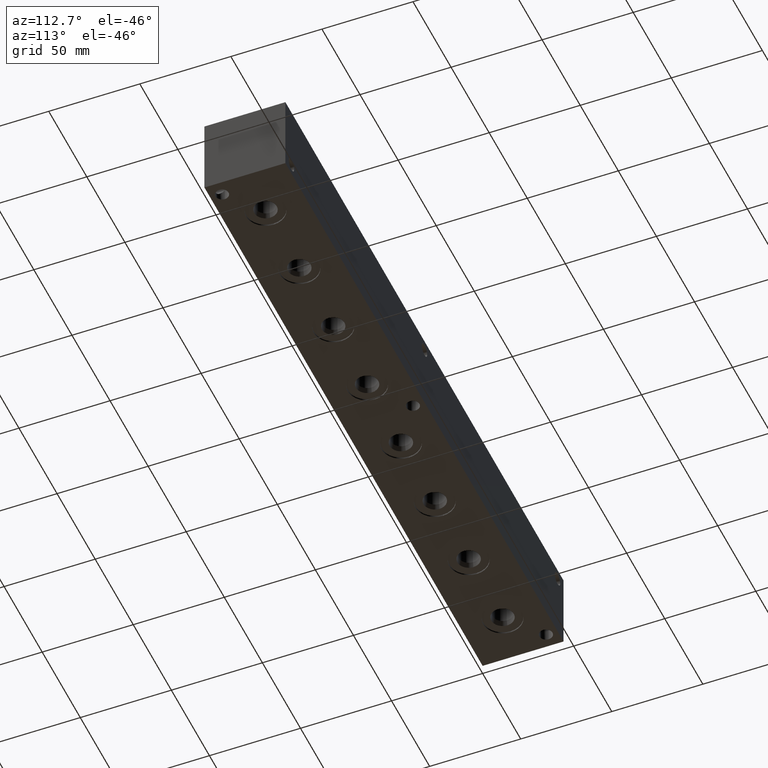
[diagram: clean part render]
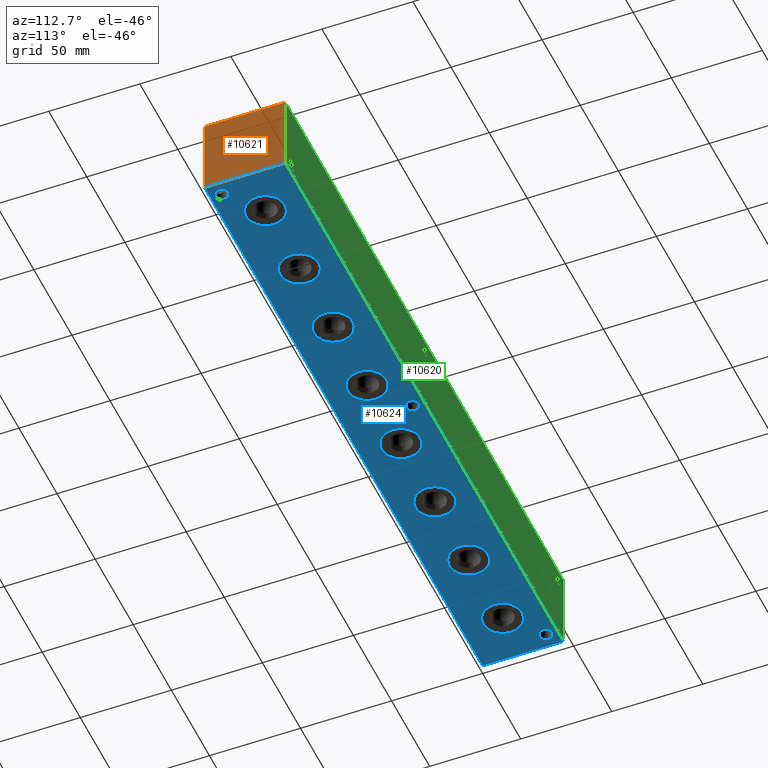
[diagram: same view with three faces highlighted in distinct colors, each labeled with its STEP entity id]
A machine part, auxiliary view with three faces highlighted in distinct colors.
Their STEP definitions:

[orange] entity #10621 — the highlighted planar face has unit normal (1, 0, 0).
#1036=PLANE('',#11541);
#1606=FACE_OUTER_BOUND('',#2274,.T.);
#2274=EDGE_LOOP('',(#9608,#9609,#9610,#9611));
#2562=LINE('',#16214,#3400);
#3134=LINE('',#18902,#3972);
#3135=LINE('',#18905,#3973);
#3136=LINE('',#18906,#3974);
#3400=VECTOR('',#11947,10.);
#3972=VECTOR('',#14185,10.);
#3973=VECTOR('',#14188,10.);
#3974=VECTOR('',#14189,10.);
#4489=VERTEX_POINT('',#16211);
#4490=VERTEX_POINT('',#16213);
#5189=VERTEX_POINT('',#18900);
#5190=VERTEX_POINT('',#18904);
#5627=EDGE_CURVE('',#4489,#4490,#2562,.T.);
#6678=EDGE_CURVE('',#5189,#4490,#3134,.T.);
#6679=EDGE_CURVE('',#5190,#5189,#3135,.T.);
#6680=EDGE_CURVE('',#5190,#4489,#3136,.T.);
#9608=ORIENTED_EDGE('',*,*,#6679,.T.);
#9609=ORIENTED_EDGE('',*,*,#6678,.T.);
#9610=ORIENTED_EDGE('',*,*,#5627,.F.);
#9611=ORIENTED_EDGE('',*,*,#6680,.F.);
#10621=ADVANCED_FACE('',(#1606),#1036,.T.);
#11541=AXIS2_PLACEMENT_3D('',#18903,#14186,#14187);
#11947=DIRECTION('',(0.,1.,0.));
#14185=DIRECTION('',(0.,0.,1.));
#14186=DIRECTION('center_axis',(1.,0.,0.));
#14187=DIRECTION('ref_axis',(0.,1.,0.));
#14188=DIRECTION('',(0.,1.,0.));
#14189=DIRECTION('',(0.,0.,1.));
#16211=CARTESIAN_POINT('',(365.125,0.,44.45));
#16213=CARTESIAN_POINT('',(365.125,44.45,44.45));
#16214=CARTESIAN_POINT('',(365.125,0.,44.45));
#18900=CARTESIAN_POINT('',(365.125,44.45,0.));
#18902=CARTESIAN_POINT('',(365.125,44.45,0.));
#18903=CARTESIAN_POINT('Origin',(365.125,0.,0.));
#18904=CARTESIAN_POINT('',(365.125,0.,0.));
#18905=CARTESIAN_POINT('',(365.125,0.,0.));
#18906=CARTESIAN_POINT('',(365.125,0.,0.));

[blue] entity #10624 — the highlighted planar face has unit normal (0, 0, 1).
#384=CIRCLE('',#10995,10.6426);
#385=CIRCLE('',#10996,10.6426);
#389=CIRCLE('',#11003,10.6426);
#390=CIRCLE('',#11004,10.6426);
#394=CIRCLE('',#11011,10.6426);
#395=CIRCLE('',#11012,10.6426);
#399=CIRCLE('',#11019,10.6426);
#400=CIRCLE('',#11020,10.6426);
#404=CIRCLE('',#11027,10.6426);
#405=CIRCLE('',#11028,10.6426);
#409=CIRCLE('',#11035,10.6426);
#410=CIRCLE('',#11036,10.6426);
#414=CIRCLE('',#11043,10.6426);
#415=CIRCLE('',#11044,10.6426);
#419=CIRCLE('',#11051,10.6426);
#420=CIRCLE('',#11052,10.6426);
#642=CIRCLE('',#11514,3.5687);
#643=CIRCLE('',#11516,3.5687);
#644=CIRCLE('',#11518,3.5687);
#766=FACE_BOUND('',#2289,.T.);
#767=FACE_BOUND('',#2290,.T.);
#768=FACE_BOUND('',#2291,.T.);
#769=FACE_BOUND('',#2292,.T.);
#770=FACE_BOUND('',#2293,.T.);
#771=FACE_BOUND('',#2294,.T.);
#772=FACE_BOUND('',#2295,.T.);
#773=FACE_BOUND('',#2296,.T.);
#774=FACE_BOUND('',#2297,.T.);
#775=FACE_BOUND('',#2298,.T.);
#776=FACE_BOUND('',#2299,.T.);
#1039=PLANE('',#11544);
#1609=FACE_OUTER_BOUND('',#2288,.T.);
#2288=EDGE_LOOP('',(#9641,#9642,#9643,#9644));
#2289=EDGE_LOOP('',(#9645,#9646));
#2290=EDGE_LOOP('',(#9647,#9648));
#2291=EDGE_LOOP('',(#9649,#9650));
#2292=EDGE_LOOP('',(#9651,#9652));
#2293=EDGE_LOOP('',(#9653,#9654));
#2294=EDGE_LOOP('',(#9655,#9656));
#2295=EDGE_LOOP('',(#9657,#9658));
#2296=EDGE_LOOP('',(#9659,#9660));
#2297=EDGE_LOOP('',(#9661));
#2298=EDGE_LOOP('',(#9662));
#2299=EDGE_LOOP('',(#9663));
#3130=LINE('',#18896,#3968);
#3133=LINE('',#18901,#3971);
#3135=LINE('',#18905,#3973);
#3137=LINE('',#18908,#3975);
#3968=VECTOR('',#14179,10.);
#3971=VECTOR('',#14184,10.);
#3973=VECTOR('',#14188,10.);
#3975=VECTOR('',#14192,10.);
#4860=VERTEX_POINT('',#17469);
#4861=VERTEX_POINT('',#17470);
#4865=VERTEX_POINT('',#17484);
#4866=VERTEX_POINT('',#17485);
#4870=VERTEX_POINT('',#17499);
#4871=VERTEX_POINT('',#17500);
#4875=VERTEX_POINT('',#17514);
#4876=VERTEX_POINT('',#17515);
#4880=VERTEX_POINT('',#17529);
#4881=VERTEX_POINT('',#17530);
#4885=VERTEX_POINT('',#17544);
#4886=VERTEX_POINT('',#17545);
#4890=VERTEX_POINT('',#17559);
#4891=VERTEX_POINT('',#17560);
#4895=VERTEX_POINT('',#17574);
#4896=VERTEX_POINT('',#17575);
#5172=VERTEX_POINT('',#18844);
#5173=VERTEX_POINT('',#18848);
#5174=VERTEX_POINT('',#18852);
#5187=VERTEX_POINT('',#18894);
#5188=VERTEX_POINT('',#18895);
#5189=VERTEX_POINT('',#18900);
#5190=VERTEX_POINT('',#18904);
#6165=EDGE_CURVE('',#4860,#4861,#384,.T.);
#6166=EDGE_CURVE('',#4861,#4860,#385,.T.);
#6172=EDGE_CURVE('',#4865,#4866,#389,.T.);
#6173=EDGE_CURVE('',#4866,#4865,#390,.T.);
#6179=EDGE_CURVE('',#4870,#4871,#394,.T.);
#6180=EDGE_CURVE('',#4871,#4870,#395,.T.);
#6186=EDGE_CURVE('',#4875,#4876,#399,.T.);
#6187=EDGE_CURVE('',#4876,#4875,#400,.T.);
#6193=EDGE_CURVE('',#4880,#4881,#404,.T.);
#6194=EDGE_CURVE('',#4881,#4880,#405,.T.);
#6200=EDGE_CURVE('',#4885,#4886,#409,.T.);
#6201=EDGE_CURVE('',#4886,#4885,#410,.T.);
#6207=EDGE_CURVE('',#4890,#4891,#414,.T.);
#6208=EDGE_CURVE('',#4891,#4890,#415,.T.);
#6214=EDGE_CURVE('',#4895,#4896,#419,.T.);
#6215=EDGE_CURVE('',#4896,#4895,#420,.T.);
#6651=EDGE_CURVE('',#5172,#5172,#642,.T.);
#6653=EDGE_CURVE('',#5173,#5173,#643,.T.);
#6655=EDGE_CURVE('',#5174,#5174,#644,.T.);
#6674=EDGE_CURVE('',#5187,#5188,#3130,.T.);
#6677=EDGE_CURVE('',#5189,#5187,#3133,.T.);
#6679=EDGE_CURVE('',#5190,#5189,#3135,.T.);
#6681=EDGE_CURVE('',#5188,#5190,#3137,.T.);
#9641=ORIENTED_EDGE('',*,*,#6681,.F.);
#9642=ORIENTED_EDGE('',*,*,#6674,.F.);
#9643=ORIENTED_EDGE('',*,*,#6677,.F.);
#9644=ORIENTED_EDGE('',*,*,#6679,.F.);
#9645=ORIENTED_EDGE('',*,*,#6165,.T.);
#9646=ORIENTED_EDGE('',*,*,#6166,.T.);
#9647=ORIENTED_EDGE('',*,*,#6172,.T.);
#9648=ORIENTED_EDGE('',*,*,#6173,.T.);
#9649=ORIENTED_EDGE('',*,*,#6179,.T.);
#9650=ORIENTED_EDGE('',*,*,#6180,.T.);
#9651=ORIENTED_EDGE('',*,*,#6186,.T.);
#9652=ORIENTED_EDGE('',*,*,#6187,.T.);
#9653=ORIENTED_EDGE('',*,*,#6193,.T.);
#9654=ORIENTED_EDGE('',*,*,#6194,.T.);
#9655=ORIENTED_EDGE('',*,*,#6200,.T.);
#9656=ORIENTED_EDGE('',*,*,#6201,.T.);
#9657=ORIENTED_EDGE('',*,*,#6207,.T.);
#9658=ORIENTED_EDGE('',*,*,#6208,.T.);
#9659=ORIENTED_EDGE('',*,*,#6214,.T.);
#9660=ORIENTED_EDGE('',*,*,#6215,.T.);
#9661=ORIENTED_EDGE('',*,*,#6651,.T.);
#9662=ORIENTED_EDGE('',*,*,#6653,.T.);
#9663=ORIENTED_EDGE('',*,*,#6655,.T.);
#10624=ADVANCED_FACE('',(#1609,#766,#767,#768,#769,#770,#771,#772,#773,
#774,#775,#776),#1039,.F.);
#10995=AXIS2_PLACEMENT_3D('',#17471,#12935,#12936);
#10996=AXIS2_PLACEMENT_3D('',#17472,#12937,#12938);
#11003=AXIS2_PLACEMENT_3D('',#17486,#12953,#12954);
#11004=AXIS2_PLACEMENT_3D('',#17487,#12955,#12956);
#11011=AXIS2_PLACEMENT_3D('',#17501,#12971,#12972);
#11012=AXIS2_PLACEMENT_3D('',#17502,#12973,#12974);
#11019=AXIS2_PLACEMENT_3D('',#17516,#12989,#12990);
#11020=AXIS2_PLACEMENT_3D('',#17517,#12991,#12992);
#11027=AXIS2_PLACEMENT_3D('',#17531,#13007,#13008);
#11028=AXIS2_PLACEMENT_3D('',#17532,#13009,#13010);
#11035=AXIS2_PLACEMENT_3D('',#17546,#13025,#13026);
#11036=AXIS2_PLACEMENT_3D('',#17547,#13027,#13028);
#11043=AXIS2_PLACEMENT_3D('',#17561,#13043,#13044);
#11044=AXIS2_PLACEMENT_3D('',#17562,#13045,#13046);
#11051=AXIS2_PLACEMENT_3D('',#17576,#13061,#13062);
#11052=AXIS2_PLACEMENT_3D('',#17577,#13063,#13064);
#11514=AXIS2_PLACEMENT_3D('',#18846,#14119,#14120);
#11516=AXIS2_PLACEMENT_3D('',#18850,#14124,#14125);
#11518=AXIS2_PLACEMENT_3D('',#18854,#14129,#14130);
#11544=AXIS2_PLACEMENT_3D('',#18910,#14195,#14196);
#12935=DIRECTION('center_axis',(0.,0.,1.));
#12936=DIRECTION('ref_axis',(1.,0.,0.));
#12937=DIRECTION('center_axis',(0.,0.,1.));
#12938=DIRECTION('ref_axis',(1.,0.,0.));
#12953=DIRECTION('center_axis',(0.,0.,1.));
#12954=DIRECTION('ref_axis',(1.,0.,0.));
#12955=DIRECTION('center_axis',(0.,0.,1.));
#12956=DIRECTION('ref_axis',(1.,0.,0.));
#12971=DIRECTION('center_axis',(0.,0.,1.));
#12972=DIRECTION('ref_axis',(1.,0.,0.));
#12973=DIRECTION('center_axis',(0.,0.,1.));
#12974=DIRECTION('ref_axis',(1.,0.,0.));
#12989=DIRECTION('center_axis',(0.,0.,1.));
#12990=DIRECTION('ref_axis',(1.,0.,0.));
#12991=DIRECTION('center_axis',(0.,0.,1.));
#12992=DIRECTION('ref_axis',(1.,0.,0.));
#13007=DIRECTION('center_axis',(0.,0.,1.));
#13008=DIRECTION('ref_axis',(1.,0.,0.));
#13009=DIRECTION('center_axis',(0.,0.,1.));
#13010=DIRECTION('ref_axis',(1.,0.,0.));
#13025=DIRECTION('center_axis',(0.,0.,1.));
#13026=DIRECTION('ref_axis',(1.,0.,0.));
#13027=DIRECTION('center_axis',(0.,0.,1.));
#13028=DIRECTION('ref_axis',(1.,0.,0.));
#13043=DIRECTION('center_axis',(0.,0.,1.));
#13044=DIRECTION('ref_axis',(1.,0.,0.));
#13045=DIRECTION('center_axis',(0.,0.,1.));
#13046=DIRECTION('ref_axis',(1.,0.,0.));
#13061=DIRECTION('center_axis',(0.,0.,1.));
#13062=DIRECTION('ref_axis',(1.,0.,0.));
#13063=DIRECTION('center_axis',(0.,0.,1.));
#13064=DIRECTION('ref_axis',(1.,0.,0.));
#14119=DIRECTION('center_axis',(0.,0.,1.));
#14120=DIRECTION('ref_axis',(1.,0.,0.));
#14124=DIRECTION('center_axis',(0.,0.,1.));
#14125=DIRECTION('ref_axis',(1.,0.,0.));
#14129=DIRECTION('center_axis',(0.,0.,1.));
#14130=DIRECTION('ref_axis',(1.,0.,0.));
#14179=DIRECTION('',(0.,-1.,0.));
#14184=DIRECTION('',(-1.,0.,0.));
#14188=DIRECTION('',(0.,1.,0.));
#14192=DIRECTION('',(1.,0.,0.));
#14195=DIRECTION('center_axis',(0.,0.,1.));
#14196=DIRECTION('ref_axis',(1.,0.,0.));
#17469=CARTESIAN_POINT('',(126.5174,22.225,0.));
#17470=CARTESIAN_POINT('',(105.2322,22.225,0.));
#17471=CARTESIAN_POINT('Origin',(115.8748,22.225,0.));
#17472=CARTESIAN_POINT('Origin',(115.8748,22.225,0.));
#17484=CARTESIAN_POINT('',(215.4174,22.225,0.));
#17485=CARTESIAN_POINT('',(194.1322,22.225,0.));
#17486=CARTESIAN_POINT('Origin',(204.7748,22.225,0.));
#17487=CARTESIAN_POINT('Origin',(204.7748,22.225,0.));
#17499=CARTESIAN_POINT('',(348.7674,22.225,0.));
#17500=CARTESIAN_POINT('',(327.4822,22.225,0.));
#17501=CARTESIAN_POINT('Origin',(338.1248,22.225,0.));
#17502=CARTESIAN_POINT('Origin',(338.1248,22.225,0.));
#17514=CARTESIAN_POINT('',(37.6174,22.225,0.));
#17515=CARTESIAN_POINT('',(16.3322,22.225,0.));
#17516=CARTESIAN_POINT('Origin',(26.9748,22.225,0.));
#17517=CARTESIAN_POINT('Origin',(26.9748,22.225,0.));
#17529=CARTESIAN_POINT('',(82.0674,22.225,0.));
#17530=CARTESIAN_POINT('',(60.7822,22.225,0.));
#17531=CARTESIAN_POINT('Origin',(71.4248,22.225,0.));
#17532=CARTESIAN_POINT('Origin',(71.4248,22.225,0.));
#17544=CARTESIAN_POINT('',(170.9674,22.225,0.));
#17545=CARTESIAN_POINT('',(149.6822,22.225,0.));
#17546=CARTESIAN_POINT('Origin',(160.3248,22.225,0.));
#17547=CARTESIAN_POINT('Origin',(160.3248,22.225,0.));
#17559=CARTESIAN_POINT('',(304.3174,22.225,0.));
#17560=CARTESIAN_POINT('',(283.0322,22.225,0.));
#17561=CARTESIAN_POINT('Origin',(293.6748,22.225,0.));
#17562=CARTESIAN_POINT('Origin',(293.6748,22.225,0.));
#17574=CARTESIAN_POINT('',(259.8674,22.225,0.));
#17575=CARTESIAN_POINT('',(238.5822,22.225,0.));
#17576=CARTESIAN_POINT('Origin',(249.2248,22.225,0.));
#17577=CARTESIAN_POINT('Origin',(249.2248,22.225,0.));
#18844=CARTESIAN_POINT('',(353.6061,6.35,0.));
#18846=CARTESIAN_POINT('Origin',(357.1748,6.35,0.));
#18848=CARTESIAN_POINT('',(4.3561,38.1,0.));
#18850=CARTESIAN_POINT('Origin',(7.9248,38.1,0.));
#18852=CARTESIAN_POINT('',(179.0065,38.1,0.));
#18854=CARTESIAN_POINT('Origin',(182.5752,38.1,0.));
#18894=CARTESIAN_POINT('',(0.,44.45,0.));
#18895=CARTESIAN_POINT('',(0.,0.,0.));
#18896=CARTESIAN_POINT('',(0.,44.45,0.));
#18900=CARTESIAN_POINT('',(365.125,44.45,0.));
#18901=CARTESIAN_POINT('',(365.125,44.45,0.));
#18904=CARTESIAN_POINT('',(365.125,0.,0.));
#18905=CARTESIAN_POINT('',(365.125,0.,0.));
#18908=CARTESIAN_POINT('',(0.,0.,0.));
#18910=CARTESIAN_POINT('Origin',(182.5625,22.225,0.));

[green] entity #10620 — the highlighted planar face has unit normal (0, 1, 0).
#529=CIRCLE('',#11302,3.5687);
#532=CIRCLE('',#11311,3.5687);
#535=CIRCLE('',#11320,3.5687);
#752=FACE_BOUND('',#2271,.T.);
#753=FACE_BOUND('',#2272,.T.);
#754=FACE_BOUND('',#2273,.T.);
#1035=PLANE('',#11540);
#1605=FACE_OUTER_BOUND('',#2270,.T.);
#2270=EDGE_LOOP('',(#9601,#9602,#9603,#9604));
#2271=EDGE_LOOP('',(#9605));
#2272=EDGE_LOOP('',(#9606));
#2273=EDGE_LOOP('',(#9607));
#2563=LINE('',#16216,#3401);
#3132=LINE('',#18898,#3970);
#3133=LINE('',#18901,#3971);
#3134=LINE('',#18902,#3972);
#3401=VECTOR('',#11948,10.);
#3970=VECTOR('',#14181,10.);
#3971=VECTOR('',#14184,10.);
#3972=VECTOR('',#14185,10.);
#4490=VERTEX_POINT('',#16213);
#4491=VERTEX_POINT('',#16215);
#5049=VERTEX_POINT('',#18445);
#5054=VERTEX_POINT('',#18461);
#5059=VERTEX_POINT('',#18477);
#5187=VERTEX_POINT('',#18894);
#5189=VERTEX_POINT('',#18900);
#5628=EDGE_CURVE('',#4490,#4491,#2563,.T.);
#6466=EDGE_CURVE('',#5049,#5049,#529,.T.);
#6475=EDGE_CURVE('',#5054,#5054,#532,.T.);
#6484=EDGE_CURVE('',#5059,#5059,#535,.T.);
#6676=EDGE_CURVE('',#5187,#4491,#3132,.T.);
#6677=EDGE_CURVE('',#5189,#5187,#3133,.T.);
#6678=EDGE_CURVE('',#5189,#4490,#3134,.T.);
#9601=ORIENTED_EDGE('',*,*,#6677,.T.);
#9602=ORIENTED_EDGE('',*,*,#6676,.T.);
#9603=ORIENTED_EDGE('',*,*,#5628,.F.);
#9604=ORIENTED_EDGE('',*,*,#6678,.F.);
#9605=ORIENTED_EDGE('',*,*,#6466,.T.);
#9606=ORIENTED_EDGE('',*,*,#6475,.T.);
#9607=ORIENTED_EDGE('',*,*,#6484,.T.);
#10620=ADVANCED_FACE('',(#1605,#752,#753,#754),#1035,.T.);
#11302=AXIS2_PLACEMENT_3D('',#18447,#13631,#13632);
#11311=AXIS2_PLACEMENT_3D('',#18463,#13651,#13652);
#11320=AXIS2_PLACEMENT_3D('',#18479,#13671,#13672);
#11540=AXIS2_PLACEMENT_3D('',#18899,#14182,#14183);
#11948=DIRECTION('',(-1.,0.,0.));
#13631=DIRECTION('center_axis',(0.,-1.,0.));
#13632=DIRECTION('ref_axis',(1.,0.,0.));
#13651=DIRECTION('center_axis',(0.,-1.,0.));
#13652=DIRECTION('ref_axis',(1.,0.,0.));
#13671=DIRECTION('center_axis',(0.,-1.,0.));
#13672=DIRECTION('ref_axis',(1.,0.,0.));
#14181=DIRECTION('',(0.,0.,1.));
#14182=DIRECTION('center_axis',(0.,1.,0.));
#14183=DIRECTION('ref_axis',(-1.,0.,0.));
#14184=DIRECTION('',(-1.,0.,0.));
#14185=DIRECTION('',(0.,0.,1.));
#16213=CARTESIAN_POINT('',(365.125,44.45,44.45));
#16215=CARTESIAN_POINT('',(0.,44.45,44.45));
#16216=CARTESIAN_POINT('',(365.125,44.45,44.45));
#18445=CARTESIAN_POINT('',(353.6061,44.45,6.35));
#18447=CARTESIAN_POINT('Origin',(357.1748,44.45,6.35));
#18461=CARTESIAN_POINT('',(4.3561,44.45,38.1));
#18463=CARTESIAN_POINT('Origin',(7.9248,44.45,38.1));
#18477=CARTESIAN_POINT('',(179.0065,44.45,38.1));
#18479=CARTESIAN_POINT('Origin',(182.5752,44.45,38.1));
#18894=CARTESIAN_POINT('',(0.,44.45,0.));
#18898=CARTESIAN_POINT('',(0.,44.45,0.));
#18899=CARTESIAN_POINT('Origin',(365.125,44.45,0.));
#18900=CARTESIAN_POINT('',(365.125,44.45,0.));
#18901=CARTESIAN_POINT('',(365.125,44.45,0.));
#18902=CARTESIAN_POINT('',(365.125,44.45,0.));